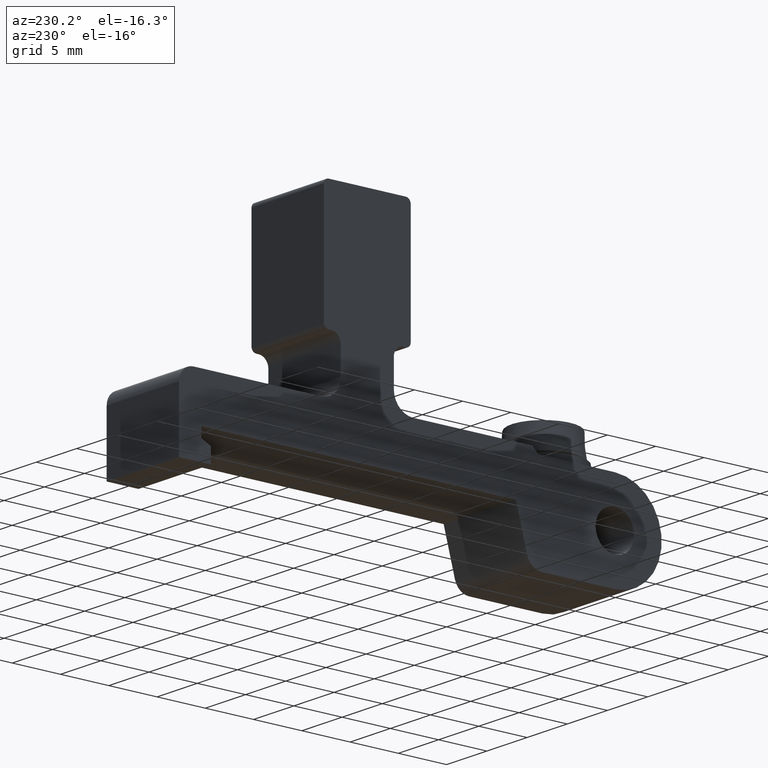
[diagram: clean part render]
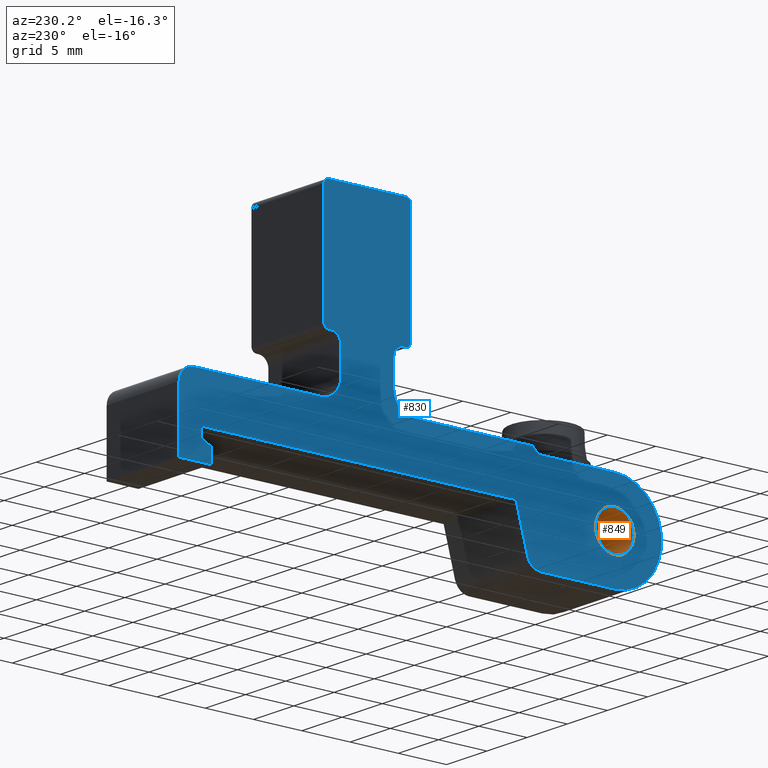
[diagram: same view with the hole feature highlighted: cylindrical wall and planar end face, labeled with their STEP entity ids]
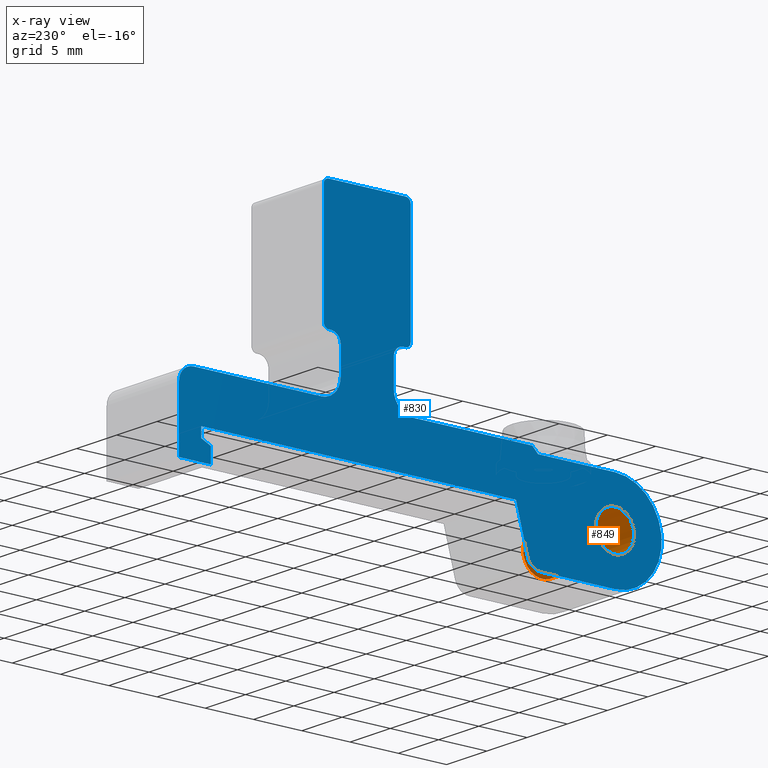
[diagram: x-ray of the same camera — body ghosted, the hole faces saturated]
A machine part, auxiliary view. The highlighted faces form one hole feature of diameter 4 mm: the cylindrical wall (entity #849, orange) and its adjacent planar end face (entity #830, blue) — they share a circular edge in the B-rep.
The next image is the same camera in x-ray (body ghosted, the hole faces saturated) — the bore reads through the body.
Wall:
#114=FACE_OUTER_BOUND('',#160,.T.);
#160=EDGE_LOOP('',(#686,#687,#688,#689));
#228=LINE('',#1387,#306);
#306=VECTOR('',#1134,2.5);
#353=CIRCLE('',#907,2.);
#370=CIRCLE('',#947,2.);
#411=VERTEX_POINT('',#1299);
#437=VERTEX_POINT('',#1385);
#492=EDGE_CURVE('',#411,#411,#353,.F.);
#533=EDGE_CURVE('',#437,#437,#370,.F.);
#534=EDGE_CURVE('',#437,#411,#228,.T.);
#686=ORIENTED_EDGE('',*,*,#533,.F.);
#687=ORIENTED_EDGE('',*,*,#534,.T.);
#688=ORIENTED_EDGE('',*,*,#492,.F.);
#689=ORIENTED_EDGE('',*,*,#534,.F.);
#820=CYLINDRICAL_SURFACE('',#946,2.);
#849=ADVANCED_FACE('',(#114),#820,.F.);
#907=AXIS2_PLACEMENT_3D('',#1300,#1032,#1033);
#946=AXIS2_PLACEMENT_3D('',#1384,#1130,#1131);
#947=AXIS2_PLACEMENT_3D('',#1386,#1132,#1133);
#1032=DIRECTION('center_axis',(-1.,-5.97393036573626E-17,2.19809794790533E-17));
#1033=DIRECTION('ref_axis',(0.,-0.877268487978452,-0.480000000000001));
#1130=DIRECTION('center_axis',(1.,0.,0.));
#1131=DIRECTION('ref_axis',(0.,-0.877268487978452,-0.480000000000001));
#1132=DIRECTION('center_axis',(1.,5.97393036573626E-17,-2.19809794790533E-17));
#1133=DIRECTION('ref_axis',(0.,-0.877268487978452,-0.480000000000001));
#1134=DIRECTION('',(-1.,0.,0.));
#1299=CARTESIAN_POINT('',(-4.5,-23.5954630240431,0.960000000000001));
#1300=CARTESIAN_POINT('Origin',(-4.5,-25.35,0.));
#1384=CARTESIAN_POINT('Origin',(0.,-25.35,0.));
#1385=CARTESIAN_POINT('',(4.5,-23.5954630240431,0.960000000000001));
#1386=CARTESIAN_POINT('Origin',(4.5,-25.35,0.));
#1387=CARTESIAN_POINT('',(0.,-23.5954630240431,0.960000000000001));
End face:
#21=FACE_BOUND('',#140,.T.);
#26=PLANE('',#896);
#95=FACE_OUTER_BOUND('',#139,.T.);
#139=EDGE_LOOP('',(#584,#585,#586,#587,#588,#589,#590,#591,#592,#593,#594,
#595,#596,#597,#598,#599,#600,#601,#602,#603,#604,#605,#606,#607,#608,#609,
#610,#611,#612,#613));
#140=EDGE_LOOP('',(#614));
#187=LINE('',#1239,#265);
#190=LINE('',#1245,#268);
#191=LINE('',#1249,#269);
#192=LINE('',#1253,#270);
#193=LINE('',#1257,#271);
#194=LINE('',#1259,#272);
#195=LINE('',#1261,#273);
#196=LINE('',#1263,#274);
#197=LINE('',#1265,#275);
#198=LINE('',#1267,#276);
#199=LINE('',#1269,#277);
#200=LINE('',#1273,#278);
#201=LINE('',#1277,#279);
#202=LINE('',#1279,#280);
#203=LINE('',#1281,#281);
#204=LINE('',#1285,#282);
#205=LINE('',#1289,#283);
#206=LINE('',#1293,#284);
#207=LINE('',#1297,#285);
#265=VECTOR('',#989,10.);
#268=VECTOR('',#994,10.);
#269=VECTOR('',#997,10.);
#270=VECTOR('',#1000,10.);
#271=VECTOR('',#1003,10.);
#272=VECTOR('',#1004,10.);
#273=VECTOR('',#1005,10.);
#274=VECTOR('',#1006,10.);
#275=VECTOR('',#1007,10.);
#276=VECTOR('',#1008,10.);
#277=VECTOR('',#1009,10.);
#278=VECTOR('',#1012,10.);
#279=VECTOR('',#1015,10.);
#280=VECTOR('',#1016,10.);
#281=VECTOR('',#1017,10.);
#282=VECTOR('',#1020,10.);
#283=VECTOR('',#1023,10.);
#284=VECTOR('',#1026,10.);
#285=VECTOR('',#1029,10.);
#341=CIRCLE('',#893,0.5);
#343=CIRCLE('',#897,1.00000000000001);
#344=CIRCLE('',#898,2.);
#345=CIRCLE('',#899,1.50000000000001);
#346=CIRCLE('',#900,1.5);
#347=CIRCLE('',#901,4.85);
#348=CIRCLE('',#902,2.);
#349=CIRCLE('',#903,1.00000000000001);
#350=CIRCLE('',#904,0.5);
#351=CIRCLE('',#905,0.5);
#352=CIRCLE('',#906,0.5);
#353=CIRCLE('',#907,2.);
#378=VERTEX_POINT('',#1229);
#379=VERTEX_POINT('',#1230);
#382=VERTEX_POINT('',#1238);
#384=VERTEX_POINT('',#1244);
#385=VERTEX_POINT('',#1246);
#386=VERTEX_POINT('',#1248);
#387=VERTEX_POINT('',#1250);
#388=VERTEX_POINT('',#1252);
#389=VERTEX_POINT('',#1254);
#390=VERTEX_POINT('',#1256);
#391=VERTEX_POINT('',#1258);
#392=VERTEX_POINT('',#1260);
#393=VERTEX_POINT('',#1262);
#394=VERTEX_POINT('',#1264);
#395=VERTEX_POINT('',#1266);
#396=VERTEX_POINT('',#1268);
#397=VERTEX_POINT('',#1270);
#398=VERTEX_POINT('',#1272);
#399=VERTEX_POINT('',#1274);
#400=VERTEX_POINT('',#1276);
#401=VERTEX_POINT('',#1278);
#402=VERTEX_POINT('',#1280);
#403=VERTEX_POINT('',#1282);
#404=VERTEX_POINT('',#1284);
#405=VERTEX_POINT('',#1286);
#406=VERTEX_POINT('',#1288);
#407=VERTEX_POINT('',#1290);
#408=VERTEX_POINT('',#1292);
#409=VERTEX_POINT('',#1294);
#410=VERTEX_POINT('',#1296);
#411=VERTEX_POINT('',#1299);
#457=EDGE_CURVE('',#378,#379,#341,.T.);
#461=EDGE_CURVE('',#382,#379,#187,.T.);
#464=EDGE_CURVE('',#378,#384,#190,.T.);
#465=EDGE_CURVE('',#384,#385,#343,.T.);
#466=EDGE_CURVE('',#385,#386,#191,.T.);
#467=EDGE_CURVE('',#386,#387,#344,.T.);
#468=EDGE_CURVE('',#387,#388,#192,.T.);
#469=EDGE_CURVE('',#388,#389,#345,.T.);
#470=EDGE_CURVE('',#389,#390,#193,.T.);
#471=EDGE_CURVE('',#390,#391,#194,.T.);
#472=EDGE_CURVE('',#391,#392,#195,.T.);
#473=EDGE_CURVE('',#392,#393,#196,.T.);
#474=EDGE_CURVE('',#393,#394,#197,.T.);
#475=EDGE_CURVE('',#394,#395,#198,.T.);
#476=EDGE_CURVE('',#395,#396,#199,.T.);
#477=EDGE_CURVE('',#396,#397,#346,.T.);
#478=EDGE_CURVE('',#397,#398,#200,.T.);
#479=EDGE_CURVE('',#398,#399,#347,.T.);
#480=EDGE_CURVE('',#399,#400,#201,.T.);
#481=EDGE_CURVE('',#400,#401,#202,.T.);
#482=EDGE_CURVE('',#401,#402,#203,.T.);
#483=EDGE_CURVE('',#402,#403,#348,.T.);
#484=EDGE_CURVE('',#403,#404,#204,.T.);
#485=EDGE_CURVE('',#404,#405,#349,.T.);
#486=EDGE_CURVE('',#405,#406,#205,.T.);
#487=EDGE_CURVE('',#407,#406,#350,.T.);
#488=EDGE_CURVE('',#407,#408,#206,.T.);
#489=EDGE_CURVE('',#409,#408,#351,.T.);
#490=EDGE_CURVE('',#409,#410,#207,.T.);
#491=EDGE_CURVE('',#382,#410,#352,.T.);
#492=EDGE_CURVE('',#411,#411,#353,.F.);
#584=ORIENTED_EDGE('',*,*,#457,.F.);
#585=ORIENTED_EDGE('',*,*,#464,.T.);
#586=ORIENTED_EDGE('',*,*,#465,.T.);
#587=ORIENTED_EDGE('',*,*,#466,.T.);
#588=ORIENTED_EDGE('',*,*,#467,.T.);
#589=ORIENTED_EDGE('',*,*,#468,.T.);
#590=ORIENTED_EDGE('',*,*,#469,.T.);
#591=ORIENTED_EDGE('',*,*,#470,.T.);
#592=ORIENTED_EDGE('',*,*,#471,.T.);
#593=ORIENTED_EDGE('',*,*,#472,.T.);
#594=ORIENTED_EDGE('',*,*,#473,.T.);
#595=ORIENTED_EDGE('',*,*,#474,.T.);
#596=ORIENTED_EDGE('',*,*,#475,.T.);
#597=ORIENTED_EDGE('',*,*,#476,.T.);
#598=ORIENTED_EDGE('',*,*,#477,.T.);
#599=ORIENTED_EDGE('',*,*,#478,.T.);
#600=ORIENTED_EDGE('',*,*,#479,.T.);
#601=ORIENTED_EDGE('',*,*,#480,.T.);
#602=ORIENTED_EDGE('',*,*,#481,.T.);
#603=ORIENTED_EDGE('',*,*,#482,.T.);
#604=ORIENTED_EDGE('',*,*,#483,.T.);
#605=ORIENTED_EDGE('',*,*,#484,.T.);
#606=ORIENTED_EDGE('',*,*,#485,.T.);
#607=ORIENTED_EDGE('',*,*,#486,.T.);
#608=ORIENTED_EDGE('',*,*,#487,.F.);
#609=ORIENTED_EDGE('',*,*,#488,.T.);
#610=ORIENTED_EDGE('',*,*,#489,.F.);
#611=ORIENTED_EDGE('',*,*,#490,.T.);
#612=ORIENTED_EDGE('',*,*,#491,.F.);
#613=ORIENTED_EDGE('',*,*,#461,.T.);
#614=ORIENTED_EDGE('',*,*,#492,.T.);
#830=ADVANCED_FACE('',(#95,#21),#26,.F.);
#893=AXIS2_PLACEMENT_3D('',#1231,#981,#982);
#896=AXIS2_PLACEMENT_3D('',#1243,#992,#993);
#897=AXIS2_PLACEMENT_3D('',#1247,#995,#996);
#898=AXIS2_PLACEMENT_3D('',#1251,#998,#999);
#899=AXIS2_PLACEMENT_3D('',#1255,#1001,#1002);
#900=AXIS2_PLACEMENT_3D('',#1271,#1010,#1011);
#901=AXIS2_PLACEMENT_3D('',#1275,#1013,#1014);
#902=AXIS2_PLACEMENT_3D('',#1283,#1018,#1019);
#903=AXIS2_PLACEMENT_3D('',#1287,#1021,#1022);
#904=AXIS2_PLACEMENT_3D('',#1291,#1024,#1025);
#905=AXIS2_PLACEMENT_3D('',#1295,#1027,#1028);
#906=AXIS2_PLACEMENT_3D('',#1298,#1030,#1031);
#907=AXIS2_PLACEMENT_3D('',#1300,#1032,#1033);
#981=DIRECTION('center_axis',(1.,5.97393036573626E-17,-2.19809794790533E-17));
#982=DIRECTION('ref_axis',(0.,0.707106781186552,-0.707106781186543));
#989=DIRECTION('',(0.,-7.72329060608803E-16,-1.));
#992=DIRECTION('center_axis',(1.,5.97393036573626E-17,-2.19809794790533E-17));
#993=DIRECTION('ref_axis',(2.19809794790533E-17,0.,1.));
#994=DIRECTION('',(0.,-1.,-8.88178419700113E-15));
#995=DIRECTION('center_axis',(1.,0.,0.));
#996=DIRECTION('ref_axis',(0.,0.,-1.));
#997=DIRECTION('',(0.,1.64477485129653E-15,-1.));
#998=DIRECTION('center_axis',(1.,0.,0.));
#999=DIRECTION('ref_axis',(0.,1.,5.55111512312578E-16));
#1000=DIRECTION('',(0.,1.,-6.70323335622736E-16));
#1001=DIRECTION('center_axis',(-1.,0.,0.));
#1002=DIRECTION('ref_axis',(0.,1.,7.77156117237603E-15));
#1003=DIRECTION('',(0.,0.,-1.));
#1004=DIRECTION('',(0.,-1.,-1.44811698864151E-15));
#1005=DIRECTION('',(0.,0.,1.));
#1006=DIRECTION('',(0.,0.90630778703665,0.4226182617407));
#1007=DIRECTION('',(0.,0.,1.));
#1008=DIRECTION('',(0.,-1.,-1.20864092882988E-16));
#1009=DIRECTION('',(0.,-0.25881904510252,-0.965925826289068));
#1010=DIRECTION('center_axis',(-1.,0.,0.));
#1011=DIRECTION('ref_axis',(0.,7.40148683083438E-16,-1.));
#1012=DIRECTION('',(0.,-1.,-6.56274335049992E-16));
#1013=DIRECTION('center_axis',(-1.,0.,0.));
#1014=DIRECTION('ref_axis',(0.,6.12323399573677E-17,1.));
#1015=DIRECTION('',(0.,1.,0.));
#1016=DIRECTION('',(0.,0.707106781186548,0.707106781186548));
#1017=DIRECTION('',(0.,1.,-8.98966011842233E-17));
#1018=DIRECTION('center_axis',(1.,0.,0.));
#1019=DIRECTION('ref_axis',(0.,0.,1.));
#1020=DIRECTION('',(0.,1.64477485129653E-15,1.));
#1021=DIRECTION('center_axis',(1.,0.,0.));
#1022=DIRECTION('ref_axis',(0.,-1.,0.));
#1023=DIRECTION('',(0.,-1.,8.88178419700113E-15));
#1024=DIRECTION('center_axis',(1.,5.97393036573626E-17,-2.19809794790533E-17));
#1025=DIRECTION('ref_axis',(0.,-0.707106781186551,-0.707106781186544));
#1026=DIRECTION('',(0.,-1.1584935909132E-15,1.));
#1027=DIRECTION('center_axis',(1.,5.97393036573626E-17,-2.19809794790533E-17));
#1028=DIRECTION('ref_axis',(0.,-0.707106781186548,0.707106781186548));
#1029=DIRECTION('',(0.,1.,1.11022302462516E-15));
#1030=DIRECTION('center_axis',(1.,5.97393036573626E-17,-2.19809794790533E-17));
#1031=DIRECTION('ref_axis',(0.,0.70710678118655,0.707106781186545));
#1032=DIRECTION('center_axis',(-1.,-5.97393036573626E-17,2.19809794790533E-17));
#1033=DIRECTION('ref_axis',(0.,-0.877268487978452,-0.480000000000001));
#1229=CARTESIAN_POINT('',(-4.5,4.3,11.15));
#1230=CARTESIAN_POINT('',(-4.5,4.8,11.65));
#1231=CARTESIAN_POINT('Origin',(-4.5,4.3,11.65));
#1238=CARTESIAN_POINT('',(-4.5,4.80000000000001,23.15));
#1239=CARTESIAN_POINT('',(-4.5,4.8,11.65));
#1243=CARTESIAN_POINT('Origin',(-4.5,-5.40395692469776,5.08499078805159));
#1244=CARTESIAN_POINT('',(-4.5,4.05,11.15));
#1245=CARTESIAN_POINT('',(-4.5,4.05,11.15));
#1246=CARTESIAN_POINT('',(-4.5,3.05,10.15));
#1247=CARTESIAN_POINT('Origin',(-4.5,4.05,10.15));
#1248=CARTESIAN_POINT('',(-4.5,3.05,7.45));
#1249=CARTESIAN_POINT('',(-4.5,3.05,7.45));
#1250=CARTESIAN_POINT('',(-4.5,5.05,5.45000000000001));
#1251=CARTESIAN_POINT('Origin',(-4.5,5.05,7.45));
#1252=CARTESIAN_POINT('',(-4.5,18.3,5.45));
#1253=CARTESIAN_POINT('',(-4.5,18.3,5.45));
#1254=CARTESIAN_POINT('',(-4.5,19.8,3.95));
#1255=CARTESIAN_POINT('Origin',(-4.5,18.3,3.94999999999999));
#1256=CARTESIAN_POINT('',(-4.5,19.8,-2.35));
#1257=CARTESIAN_POINT('',(-4.5,19.8,-1.85));
#1258=CARTESIAN_POINT('',(-4.5,16.5,-2.35));
#1259=CARTESIAN_POINT('',(-4.5,17.,-2.35));
#1260=CARTESIAN_POINT('',(-4.5,16.5,-0.816307658154996));
#1261=CARTESIAN_POINT('',(-4.5,16.5,-0.943721710316495));
#1262=CARTESIAN_POINT('',(-4.5,17.5,-0.349999999999998));
#1263=CARTESIAN_POINT('',(-4.5,17.5,-0.349999999999998));
#1264=CARTESIAN_POINT('',(-4.5,17.5,0.650000000000002));
#1265=CARTESIAN_POINT('',(-4.5,17.5,0.650000000000002));
#1266=CARTESIAN_POINT('',(-4.5,-15.1126133696076,0.649999999999998));
#1267=CARTESIAN_POINT('',(-4.5,-17.15,0.649999999999998));
#1268=CARTESIAN_POINT('',(-4.5,-16.2884356705136,-3.73822856765377));
#1269=CARTESIAN_POINT('',(-4.5,-16.2884356705136,-3.73822856765377));
#1270=CARTESIAN_POINT('',(-4.5,-17.7373244099472,-4.85));
#1271=CARTESIAN_POINT('Origin',(-4.5,-17.7373244099472,-3.35));
#1272=CARTESIAN_POINT('',(-4.5,-25.35,-4.85));
#1273=CARTESIAN_POINT('',(-4.5,-25.35,-4.85));
#1274=CARTESIAN_POINT('',(-4.5,-25.35,4.85));
#1275=CARTESIAN_POINT('Origin',(-4.5,-25.35,0.));
#1276=CARTESIAN_POINT('',(-4.5,-17.4,4.85));
#1277=CARTESIAN_POINT('',(-4.5,-17.4,4.85));
#1278=CARTESIAN_POINT('',(-4.5,-16.8,5.45));
#1279=CARTESIAN_POINT('',(-4.5,-16.8,5.45));
#1280=CARTESIAN_POINT('',(-4.5,-4.45,5.45));
#1281=CARTESIAN_POINT('',(-4.5,-4.45,5.45));
#1282=CARTESIAN_POINT('',(-4.5,-2.45,7.45));
#1283=CARTESIAN_POINT('Origin',(-4.5,-4.45,7.45));
#1284=CARTESIAN_POINT('',(-4.5,-2.44999999999999,10.15));
#1285=CARTESIAN_POINT('',(-4.5,-2.44999999999999,10.15));
#1286=CARTESIAN_POINT('',(-4.5,-3.45,11.15));
#1287=CARTESIAN_POINT('Origin',(-4.5,-3.45,10.15));
#1288=CARTESIAN_POINT('',(-4.5,-3.7,11.15));
#1289=CARTESIAN_POINT('',(-4.5,-3.7,11.15));
#1290=CARTESIAN_POINT('',(-4.5,-4.19999999999999,11.65));
#1291=CARTESIAN_POINT('Origin',(-4.5,-3.69999999999999,11.65));
#1292=CARTESIAN_POINT('',(-4.5,-4.20000000000001,23.15));
#1293=CARTESIAN_POINT('',(-4.5,-4.20000000000001,23.15));
#1294=CARTESIAN_POINT('',(-4.5,-3.70000000000001,23.65));
#1295=CARTESIAN_POINT('Origin',(-4.5,-3.70000000000001,23.15));
#1296=CARTESIAN_POINT('',(-4.5,4.30000000000001,23.65));
#1297=CARTESIAN_POINT('',(-4.5,0.300000000000002,23.65));
#1298=CARTESIAN_POINT('Origin',(-4.5,4.30000000000001,23.15));
#1299=CARTESIAN_POINT('',(-4.5,-23.5954630240431,0.960000000000001));
#1300=CARTESIAN_POINT('Origin',(-4.5,-25.35,0.));